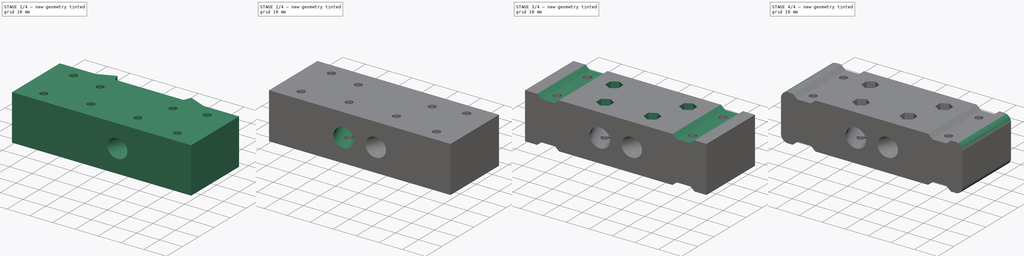
[diagram: build sequence overview — one tinted view per stage of 4, left to right]
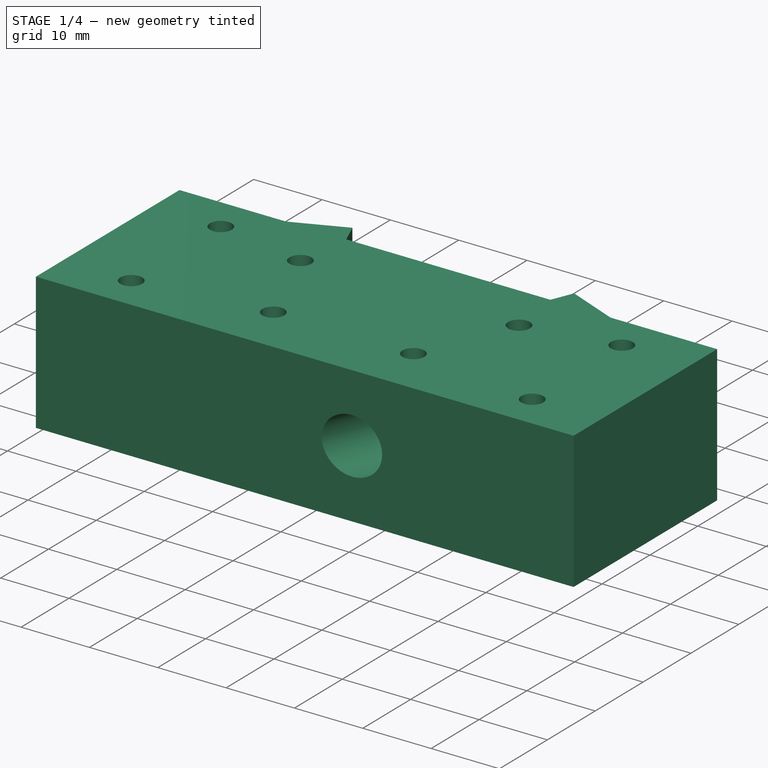
[diagram: stage 1 of 4 — iso view after this stage's code; geometry added in this stage tinted green]
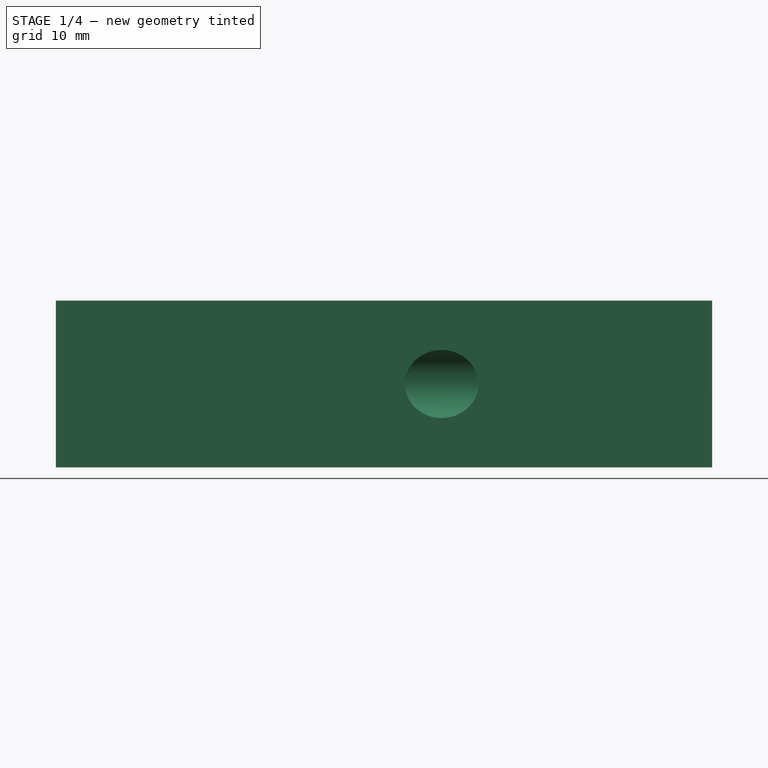
[diagram: stage 1 of 4 — front view after this stage's code; geometry added in this stage tinted green]
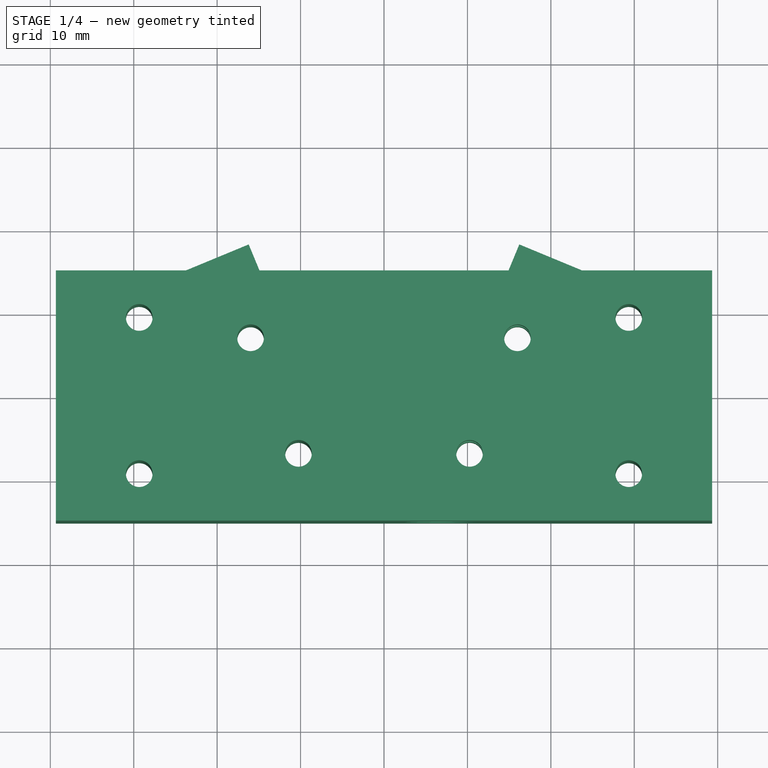
[diagram: stage 1 of 4 — top view after this stage's code; geometry added in this stage tinted green]
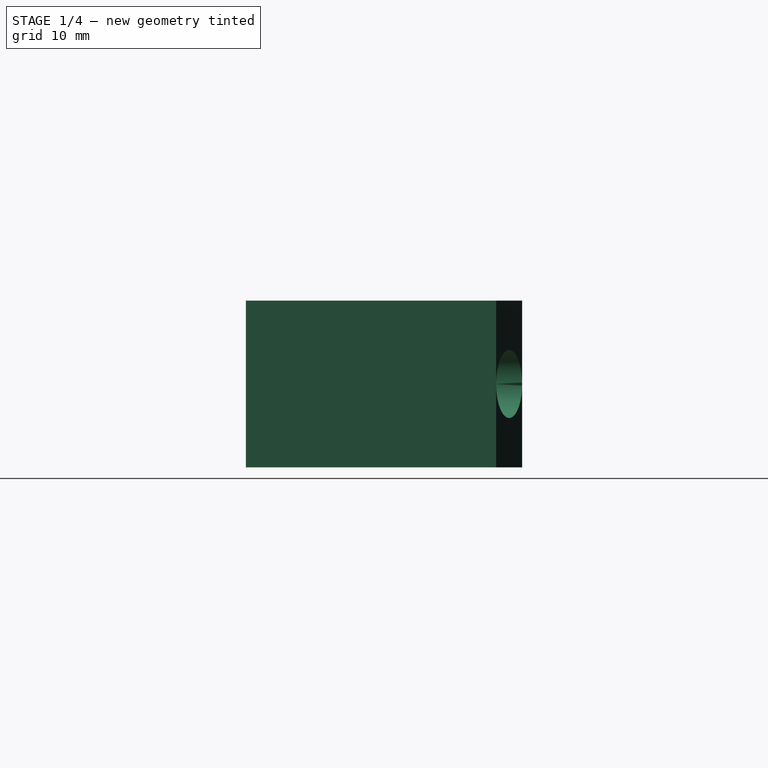
[diagram: stage 1 of 4 — right view after this stage's code; geometry added in this stage tinted green]
FCSTD DOCUMENT  (FreeCAD 0.20R29603 (Git))
Label: suporte-M8-inferior
License: All rights reserved
LicenseURL: http://en.wikipedia.org/wiki/All_rights_reserved
objects: Sketcher::SketchObject×10, PartDesign::Pocket×7, PartDesign::Pad×1, PartDesign::Fillet×1, PartDesign::Body×1
note: 29 computed .brp shape members not serialized (recipe doc carries the construction recipe); baked Part::Feature solids carry a one-line shape summary decoded from their .brp

FEATURE [Sketcher::SketchObject] Sketch
  FullyConstrained = true
  MapMode = 5
  Support = -> [XY_Plane]
  sketch-geometry (51):
    g0: LineSegment StartX=-39.3372 StartY=15 StartZ=0 EndX=39.3372 EndY=15 EndZ=0
    g1: LineSegment StartX=39.3372 StartY=15 StartZ=0 EndX=39.3372 EndY=-15 EndZ=0
    g2: LineSegment StartX=39.3372 StartY=-15 StartZ=0 EndX=-39.3372 EndY=-15 EndZ=0
    g3: LineSegment StartX=-39.3372 StartY=-15 StartZ=0 EndX=-39.3372 EndY=15 EndZ=0
    g4: LineSegment StartX=39.3372 StartY=15 StartZ=0 EndX=-39.3372 EndY=-15 EndZ=0
    g5: LineSegment StartX=-39.3372 StartY=15 StartZ=0 EndX=39.3372 EndY=-15 EndZ=0
    g6: LineSegment StartX=0 StartY=-31.684 StartZ=0 EndX=-19.3372 EndY=15 EndZ=0
    g7: LineSegment StartX=0 StartY=-31.684 StartZ=0 EndX=19.3372 EndY=15 EndZ=0
    g8: LineSegment StartX=-39.3372 StartY=15 StartZ=0 EndX=-19.3372 EndY=15 EndZ=0
    g9: LineSegment StartX=-19.3372 StartY=15 StartZ=0 EndX=-19.3372 EndY=-15 EndZ=0
    g10: LineSegment StartX=-19.3372 StartY=-15 StartZ=0 EndX=-39.3372 EndY=-15 EndZ=0
    g11: LineSegment StartX=-39.3372 StartY=-15 StartZ=0 EndX=-39.3372 EndY=15 EndZ=0
    g12: LineSegment StartX=39.3372 StartY=15 StartZ=0 EndX=19.3372 EndY=15 EndZ=0
    g13: LineSegment StartX=19.3372 StartY=15 StartZ=0 EndX=19.3372 EndY=-15 EndZ=0
    g14: LineSegment StartX=19.3372 StartY=-15 StartZ=0 EndX=39.3372 EndY=-15 EndZ=0
    g15: LineSegment StartX=39.3372 StartY=-15 StartZ=0 EndX=39.3372 EndY=15 EndZ=0
    g16: LineSegment StartX=-19.3372 StartY=15 StartZ=0 EndX=-39.3372 EndY=-15 EndZ=0
    g17: LineSegment StartX=19.3372 StartY=-15 StartZ=0 EndX=39.3372 EndY=15 EndZ=0
    g18: LineSegment StartX=-29.3372 StartY=0 StartZ=0 EndX=-29.3372 EndY=9.3625 EndZ=0
    g19: LineSegment StartX=-29.3372 StartY=0 StartZ=0 EndX=-29.3372 EndY=-9.3625 EndZ=0
    g20: LineSegment StartX=29.3372 StartY=9.3625 StartZ=0 EndX=29.3372 EndY=0 EndZ=0
    g21: LineSegment StartX=29.3372 StartY=0 StartZ=0 EndX=29.3372 EndY=-9.3625 EndZ=0
    g22: Circle CenterX=-29.3372 CenterY=9.3625 CenterZ=0 NormalX=0 NormalY=0 NormalZ=1 AngleXU=0 Radius=1.6
    g23: Circle CenterX=-29.3372 CenterY=-9.3625 CenterZ=0 NormalX=0 NormalY=0 NormalZ=1 AngleXU=0 Radius=1.6
    g24: Circle CenterX=29.3372 CenterY=9.3625 CenterZ=0 NormalX=0 NormalY=0 NormalZ=1 AngleXU=0 Radius=1.6
    g25: Circle CenterX=29.3372 CenterY=-9.3625 CenterZ=0 NormalX=0 NormalY=0 NormalZ=1 AngleXU=0 Radius=1.6
    g26: LineSegment StartX=-23.7479 StartY=15 StartZ=0 EndX=-11.3215 EndY=-15 EndZ=0
    g27: LineSegment StartX=-2.5 StartY=-15 StartZ=0 EndX=-16.2183 EndY=18.1189 EndZ=0
    g28: LineSegment StartX=2.5 StartY=-15 StartZ=0 EndX=16.2183 EndY=18.1189 EndZ=0
    g29: LineSegment StartX=23.7479 StartY=15 StartZ=0 EndX=11.3215 EndY=-15 EndZ=0
    g30: LineSegment StartX=-9.35914 StartY=1.55943 StartZ=0 EndX=-16.8888 EndY=-1.55943 EndZ=0
    g31: LineSegment StartX=-16.8888 StartY=-1.55943 StartZ=0 EndX=-13.124 EndY=0 EndZ=0
    g32: LineSegment StartX=-13.124 StartY=0 StartZ=0 EndX=-9.35914 EndY=1.55943 EndZ=0
    g33: LineSegment StartX=16.8888 StartY=-1.55943 StartZ=0 EndX=9.35914 EndY=1.55943 EndZ=0
    g34: LineSegment StartX=9.35914 StartY=1.55943 StartZ=0 EndX=13.124 EndY=0 EndZ=0
    g35: LineSegment StartX=13.124 StartY=0 StartZ=0 EndX=16.8888 EndY=-1.55943 EndZ=0
    g36: GeomPoint X=-23.7479 Y=15 Z=0
    g37: GeomPoint X=-14.9264 Y=15 Z=0
    g38: LineSegment StartX=-39.3372 StartY=15 StartZ=0 EndX=-23.7479 EndY=15 EndZ=0
    g39: LineSegment StartX=23.7479 StartY=15 StartZ=0 EndX=39.3372 EndY=15 EndZ=0
    g40: Circle CenterX=10.2538 CenterY=-6.9291 CenterZ=0 NormalX=0 NormalY=0 NormalZ=1 AngleXU=0 Radius=1.6
    g41: Circle CenterX=15.9941 CenterY=6.9291 CenterZ=0 NormalX=0 NormalY=0 NormalZ=1 AngleXU=0 Radius=1.6
    g42: Circle CenterX=-10.2538 CenterY=-6.9291 CenterZ=0 NormalX=0 NormalY=0 NormalZ=1 AngleXU=0 Radius=1.6
    g43: Circle CenterX=-15.9941 CenterY=6.9291 CenterZ=0 NormalX=0 NormalY=0 NormalZ=1 AngleXU=0 Radius=1.6
    g44: LineSegment StartX=-10.2538 StartY=-6.9291 StartZ=0 EndX=-13.124 EndY=0 EndZ=0
    g45: LineSegment StartX=-13.124 StartY=0 StartZ=0 EndX=-15.9941 EndY=6.9291 EndZ=0
    g46: LineSegment StartX=-23.7479 StartY=15 StartZ=0 EndX=-16.2183 EndY=18.1189 EndZ=0
    g47: LineSegment StartX=23.7479 StartY=15 StartZ=0 EndX=16.2183 EndY=18.1189 EndZ=0
    g48: LineSegment StartX=-16.2183 StartY=18.1189 StartZ=0 EndX=-14.9264 EndY=15 EndZ=0
    g49: LineSegment StartX=-14.9264 StartY=15 StartZ=0 EndX=14.9264 EndY=15 EndZ=0
    g50: LineSegment StartX=14.9264 StartY=15 StartZ=0 EndX=16.2183 EndY=18.1189 EndZ=0
  constraints (140):
    c: Coincident(g0,g1)
    c: Coincident(g1,g2)
    c: Coincident(g2,g3)
    c: Coincident(g3,g0)
    c: Horizontal(g0)
    c: Horizontal(g2)
    c: Vertical(g1)
    c: Vertical(g3)
    c: Coincident(g4,g0)
    c: Coincident(g4,g2)
    c: Coincident(g5,g0)
    c: Coincident(g5,g1)
    c: PointOnObject(g-1,g5)
    c: PointOnObject(g-1,g4)
    c: PointOnObject(g6,g-2)
    c: Coincident(g7,g6)
    c: Horizontal(g7,g6)
    c: Equal(g7,g6)
    c: Angle(g7,g6) = 0.785398
    c: Coincident(g8,g9)
    c: Coincident(g9,g10)
    c: Coincident(g10,g11)
    c: Coincident(g11,g8)
    c: Horizontal(g8)
    c: Horizontal(g10)
    c: Vertical(g9)
    c: Vertical(g11)
    c: Coincident(g8,g0)
    c: PointOnObject(g9,g2)
    c: Coincident(g12,g13)
    c: Coincident(g13,g14)
    c: Coincident(g14,g15)
    c: Coincident(g15,g12)
    c: Horizontal(g12)
    c: Horizontal(g14)
    c: Vertical(g13)
    c: Vertical(g15)
    c: Coincident(g12,g0)
    c: PointOnObject(g13,g2)
    c: Equal(g14,g10)
    c: DistanceX(g2,g9) = 20
    c: DistanceY(g3,g3) = 30
    c: Coincident(g16,g8)
    c: Coincident(g16,g2)
    c: Coincident(g17,g13)
    c: Coincident(g17,g0)
    c: Coincident(g19,g18)
    c: Coincident(g21,g20)
    c: PointOnObject(g18,g16)
    c: PointOnObject(g18,g-1)
    c: PointOnObject(g20,g17)
    c: PointOnObject(g20,g-1)
    c: Vertical(g19)
    c: Vertical(g18)
    c: Vertical(g20)
    c: Vertical(g21)
    c: Equal(g19,g18)
    c: Equal(g18,g20)
    c: Equal(g20,g21)
    c: Coincident(g22,g18)
    c: Coincident(g23,g19)
    c: Coincident(g24,g20)
    c: Coincident(g25,g21)
    c: Equal(g22,g23)
    c: Equal(g23,g25)
    c: Equal(g25,g24)
    c: Diameter(g24) = 3.2
    c: DistanceY(g25,g24) = 18.725
    c: PointOnObject(g26,g2)
    c: PointOnObject(g27,g2)
    c: PointOnObject(g28,g2)
    c: PointOnObject(g29,g2)
    c: Parallel(g27,g6)
    c: Parallel(g6,g26)
    c: Parallel(g29,g7)
    c: Parallel(g7,g28)
    c: PointOnObject(g30,g27)
    c: PointOnObject(g30,g26)
    c: Angle(g30,g6) = 1.5708
    c: Coincident(g31,g30)
    c: PointOnObject(g31,g6)
    c: Coincident(g32,g31)
    c: Coincident(g32,g30)
    c: Equal(g32,g31)
    c: PointOnObject(g31,g30)
    c: Distance(g30) = 8.15
    c: Coincident(g6,g8)
    c: PointOnObject(g33,g29)
    c: PointOnObject(g33,g28)
    c: Angle(g7,g33) = 1.5708
    c: Coincident(g34,g33)
    c: PointOnObject(g34,g7)
    c: Coincident(g35,g34)
    c: Coincident(g35,g33)
    c: Equal(g35,g34)
    c: PointOnObject(g34,g33)
    c: Equal(g33,g30)
    c: Horizontal(g34,g31)
    c: DistanceX(g27,g28) = 5
    c: PointOnObject(g31,g-1)
    c: PointOnObject(g38,g0)
    c: PointOnObject(g39,g0)
    c: PointOnObject(g36,g0)
    c: PointOnObject(g36,g26)
    c: PointOnObject(g37,g27)
    c: PointOnObject(g37,g0)
    c: Coincident(g38,g3)
    c: Coincident(g39,g1)
    c: PointOnObject(g40,g7)
    c: PointOnObject(g41,g7)
    c: PointOnObject(g42,g6)
    c: PointOnObject(g43,g6)
    c: Equal(g43,g41)
    c: Equal(g41,g40)
    c: Equal(g40,g42)
    c: Coincident(g44,g42)
    c: Coincident(g45,g44)
    c: Coincident(g45,g43)
    c: Equal(g45,g44)
    c: PointOnObject(g44,g-1)
    c: PointOnObject(g44,g30)
    c: Equal(g42,g22)
    c: Horizontal(g41,g43)
    c: Horizontal(g42,g40)
    c: Distance(g40,g41) = 15
    c: Coincident(g27,g46)
    c: Coincident(g46,g26)
    c: Parallel(g46,g30)
    c: Coincident(g38,g46)
    c: Coincident(g47,g29)
    c: Coincident(g47,g28)
    c: Coincident(g47,g39)
    c: Parallel(g47,g33)
    c: Coincident(g46,g48)
    c: Coincident(g48,g37)
    c: Coincident(g48,g49)
    c: Horizontal(g49)
    c: Coincident(g49,g50)
    c: Coincident(g50,g47)
    c: PointOnObject(g49,g28)
FEATURE [PartDesign::Pad] Pad
  Direction = (0,0,1)
  Length = 20
  Length2 = 10
  Profile = -> Sketch
  ReferenceAxis = -> Sketch [N_Axis]
  Type = 0
FEATURE [Sketcher::SketchObject] Sketch001
  ExternalGeometry = -> [Pad]
  FullyConstrained = true
  MapMode = 5
  Placement = pos=(8.7811,21.1995,0) rot=(0.139281,0.700215,0.700215;2.86481rad)
  Support = -> [Pad]
  sketch-geometry (3):
    g0: LineSegment StartX=-8.04995 StartY=20 StartZ=0 EndX=-16.2 EndY=0 EndZ=0
    g1: LineSegment StartX=-16.2 StartY=20 StartZ=0 EndX=-8.04995 EndY=0 EndZ=0
    g2: Circle CenterX=-12.125 CenterY=10 CenterZ=0 NormalX=0 NormalY=0 NormalZ=1 AngleXU=0 Radius=4.075
  constraints (7):
    c: Coincident(g0,g-4)
    c: Coincident(g0,g-3)
    c: Coincident(g1,g-3)
    c: Coincident(g1,g-4)
    c: PointOnObject(g2,g1)
    c: PointOnObject(g2,g0)
    c: Diameter(g2) = 8.15
FEATURE [PartDesign::Pocket] Pocket
  BaseFeature = -> Pad
  Direction = (-0.382683,-0.92388,2e-16)
  Length = 5
  Length2 = 5
  Profile = -> Sketch001
  ReferenceAxis = -> Sketch001 [N_Axis]
  Type = 1
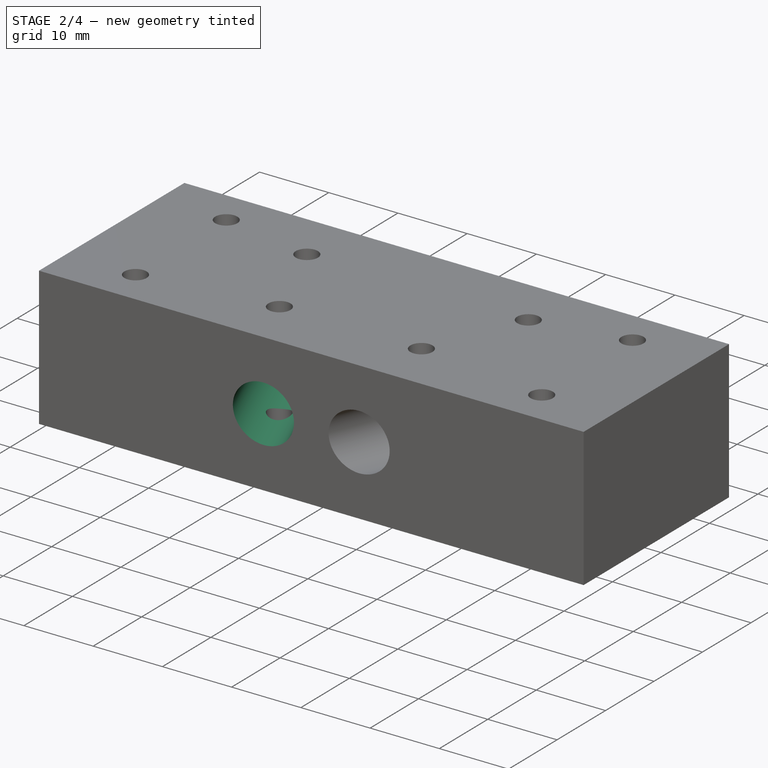
[diagram: stage 2 of 4 — iso view after this stage's code; geometry added in this stage tinted green]
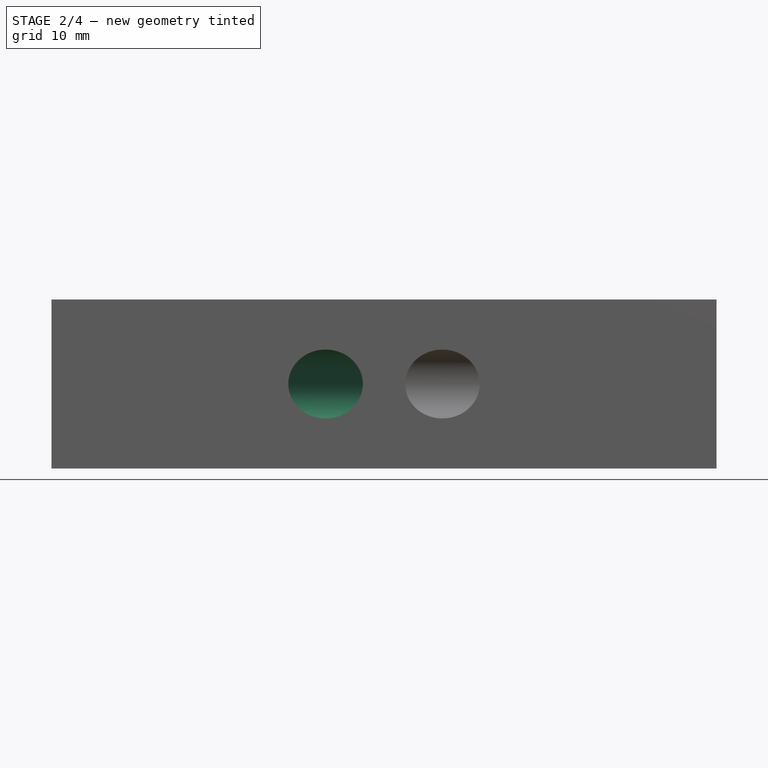
[diagram: stage 2 of 4 — front view after this stage's code; geometry added in this stage tinted green]
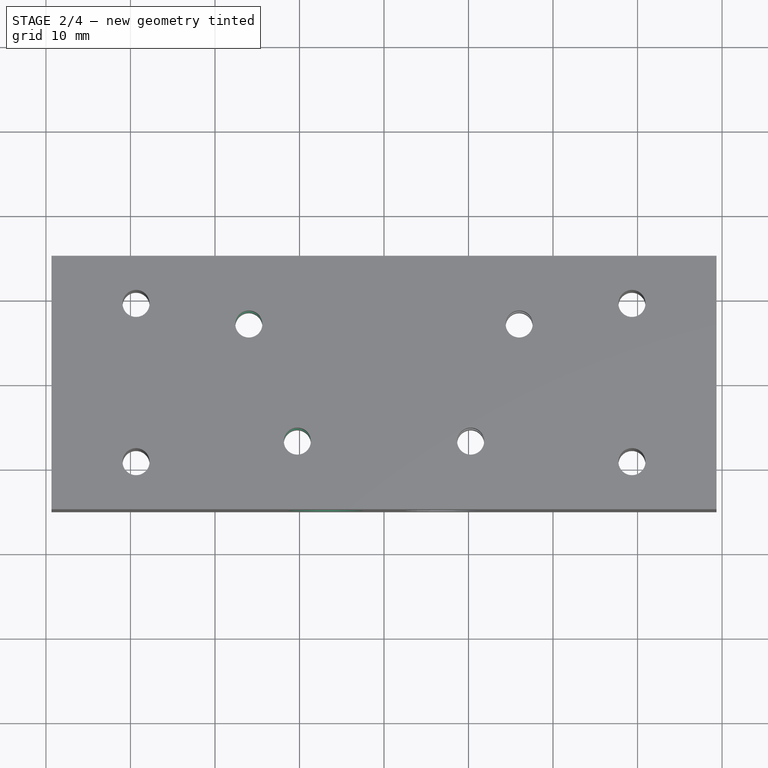
[diagram: stage 2 of 4 — top view after this stage's code; geometry added in this stage tinted green]
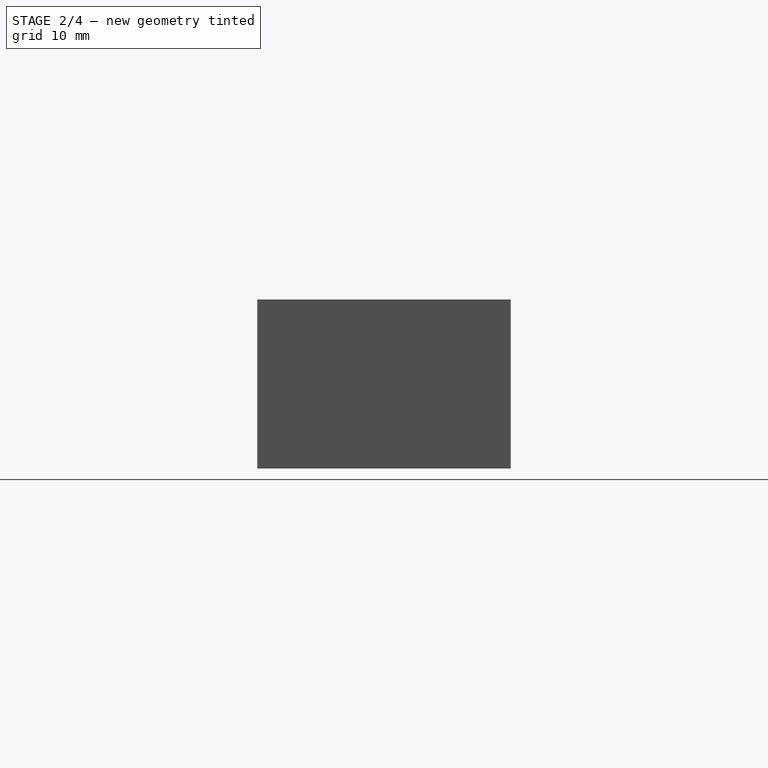
[diagram: stage 2 of 4 — right view after this stage's code; geometry added in this stage tinted green]
FEATURE [Sketcher::SketchObject] Sketch002
  ExternalGeometry = -> [Pocket]
  FullyConstrained = true
  MapMode = 5
  Placement = pos=(-8.7811,21.1995,0) rot=(-0.139281,0.700215,0.700215;3.41838rad)
  Support = -> [Pocket]
  sketch-geometry (3):
    g0: LineSegment StartX=16.2 StartY=20 StartZ=0 EndX=8.04995 EndY=0 EndZ=0
    g1: LineSegment StartX=16.2 StartY=0 StartZ=0 EndX=8.04995 EndY=20 EndZ=0
    g2: Circle CenterX=12.125 CenterY=10 CenterZ=0 NormalX=0 NormalY=0 NormalZ=1 AngleXU=0 Radius=4.075
  constraints (7):
    c: Coincident(g0,g-4)
    c: Coincident(g1,g-4)
    c: Coincident(g1,g-3)
    c: Coincident(g0,g-3)
    c: PointOnObject(g2,g1)
    c: PointOnObject(g2,g0)
    c: Diameter(g2) = 8.15
FEATURE [PartDesign::Pocket] Pocket001
  BaseFeature = -> Pocket
  Direction = (0.382683,-0.92388,0)
  Length = 5
  Length2 = 5
  Profile = -> Sketch002
  ReferenceAxis = -> Sketch002 [N_Axis]
  Type = 1
FEATURE [Sketcher::SketchObject] Sketch003
  ExternalGeometry = -> [Pocket001]
  FullyConstrained = true
  MapMode = 5
  Placement = pos=(0,0,0) rot=(1,0,0;3.14159rad)
  Support = -> [Pocket001]
  sketch-geometry (6):
    g0: LineSegment StartX=-14.9264 StartY=-15 StartZ=0 EndX=-16.2183 EndY=-18.1189 EndZ=0
    g1: LineSegment StartX=-16.2183 StartY=-18.1189 StartZ=0 EndX=-23.7479 EndY=-15 EndZ=0
    g2: LineSegment StartX=-23.7479 StartY=-15 StartZ=0 EndX=-14.9264 EndY=-15 EndZ=0
    g3: LineSegment StartX=14.9264 StartY=-15 StartZ=0 EndX=16.2183 EndY=-18.1189 EndZ=0
    g4: LineSegment StartX=16.2183 StartY=-18.1189 StartZ=0 EndX=23.7479 EndY=-15 EndZ=0
    g5: LineSegment StartX=23.7479 StartY=-15 StartZ=0 EndX=14.9264 EndY=-15 EndZ=0
  constraints (12):
    c: Coincident(g-3,g0)
    c: Coincident(g0,g-4)
    c: Coincident(g0,g1)
    c: Coincident(g1,g-4)
    c: Coincident(g1,g2)
    c: Coincident(g2,g0)
    c: Coincident(g3,g-6)
    c: Coincident(g3,g4)
    c: Coincident(g4,g-6)
    c: Coincident(g4,g5)
    c: Coincident(g5,g3)
    c: Coincident(g3,g-5)
FEATURE [PartDesign::Pocket] Pocket002
  BaseFeature = -> Pocket001
  Direction = (0,0,1)
  Length = 5
  Length2 = 5
  Profile = -> Sketch003
  ReferenceAxis = -> Sketch003 [N_Axis]
  Type = 1
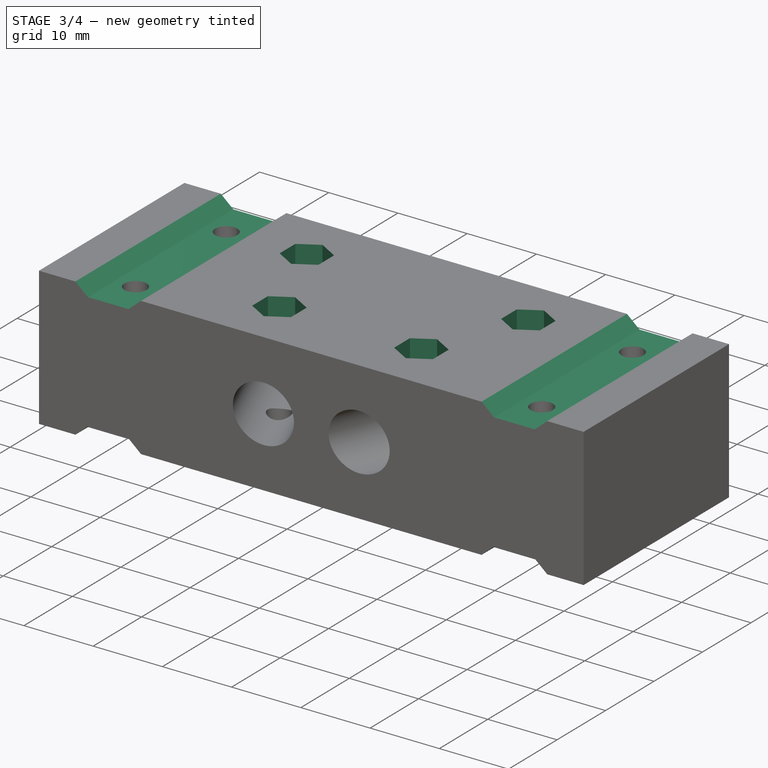
[diagram: stage 3 of 4 — iso view after this stage's code; geometry added in this stage tinted green]
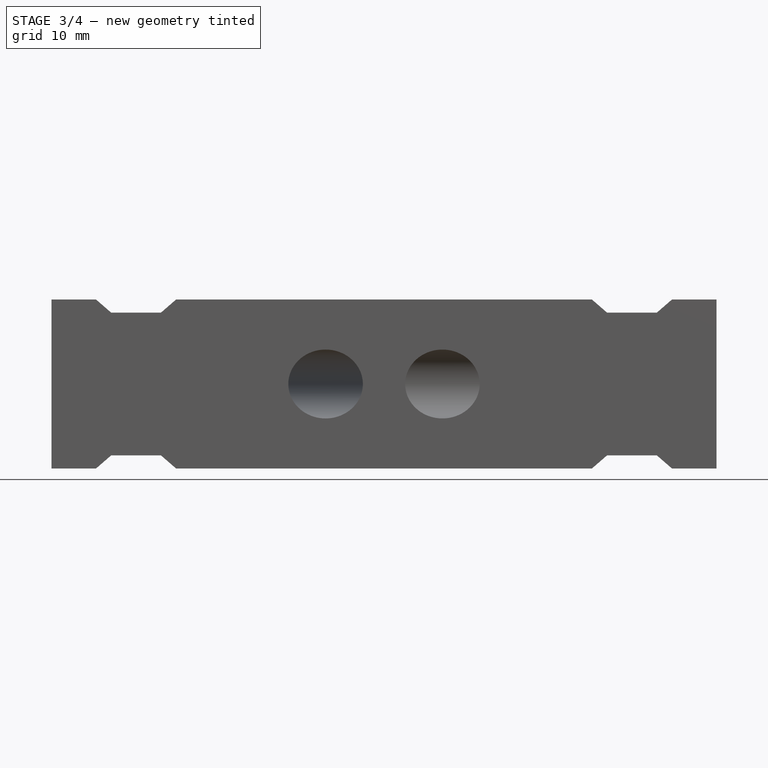
[diagram: stage 3 of 4 — front view after this stage's code; geometry added in this stage tinted green]
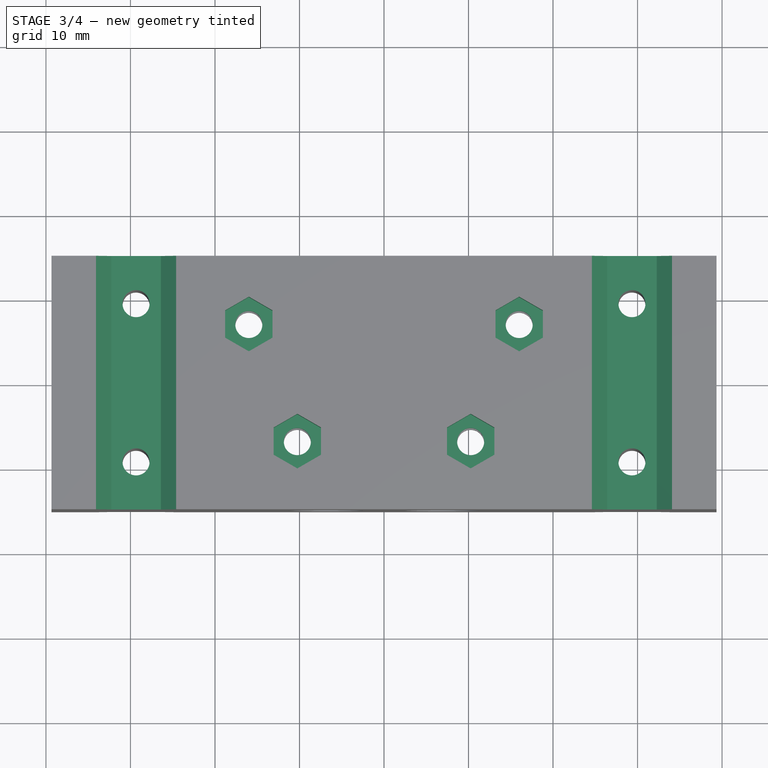
[diagram: stage 3 of 4 — top view after this stage's code; geometry added in this stage tinted green]
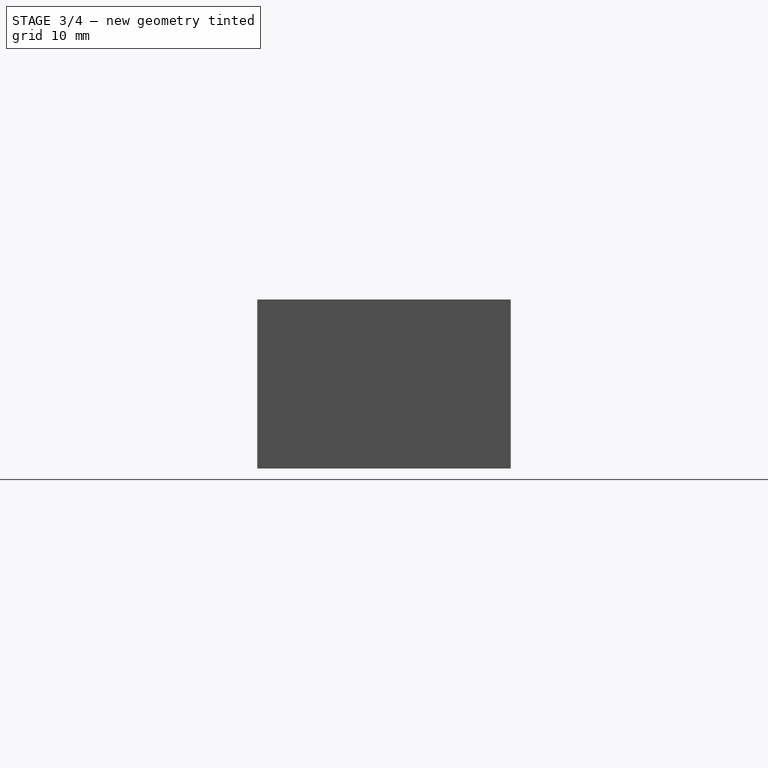
[diagram: stage 3 of 4 — right view after this stage's code; geometry added in this stage tinted green]
FEATURE [Sketcher::SketchObject] Sketch004
  ExternalGeometry = -> [Pocket002]
  FullyConstrained = true
  MapMode = 5
  Placement = pos=(0,0,0) rot=(1,0,0;3.14159rad)
  Support = -> [Pocket002]
  sketch-geometry (28):
    g0: LineSegment StartX=-7.45383 StartY=8.54568 StartZ=0 EndX=-10.2538 EndY=10.1623 EndZ=0
    g1: LineSegment StartX=-10.2538 StartY=10.1623 StartZ=0 EndX=-13.0538 EndY=8.54568 EndZ=0
    g2: LineSegment StartX=-13.0538 StartY=8.54568 StartZ=0 EndX=-13.0538 EndY=5.31252 EndZ=0
    g3: LineSegment StartX=-13.0538 StartY=5.31252 StartZ=0 EndX=-10.2538 EndY=3.69593 EndZ=0
    g4: LineSegment StartX=-10.2538 StartY=3.69593 StartZ=0 EndX=-7.45383 EndY=5.31252 EndZ=0
    g5: LineSegment StartX=-7.45383 StartY=5.31252 StartZ=0 EndX=-7.45383 EndY=8.54568 EndZ=0
    g6: Circle CenterX=-10.2538 CenterY=6.9291 CenterZ=0 NormalX=0 NormalY=0 NormalZ=1 AngleXU=0 Radius=3.23316
    g7: LineSegment StartX=13.0538 StartY=8.54568 StartZ=0 EndX=10.2538 EndY=10.1623 EndZ=0
    g8: LineSegment StartX=10.2538 StartY=10.1623 StartZ=0 EndX=7.45383 EndY=8.54568 EndZ=0
    g9: LineSegment StartX=7.45383 StartY=8.54568 StartZ=0 EndX=7.45383 EndY=5.31252 EndZ=0
    g10: LineSegment StartX=7.45383 StartY=5.31252 StartZ=0 EndX=10.2538 EndY=3.69593 EndZ=0
    g11: LineSegment StartX=10.2538 StartY=3.69593 StartZ=0 EndX=13.0538 EndY=5.31252 EndZ=0
    g12: LineSegment StartX=13.0538 StartY=5.31252 StartZ=0 EndX=13.0538 EndY=8.54568 EndZ=0
    g13: Circle CenterX=10.2538 CenterY=6.9291 CenterZ=0 NormalX=0 NormalY=0 NormalZ=1 AngleXU=0 Radius=3.23316
    g14: LineSegment StartX=15.9941 StartY=-3.69593 StartZ=0 EndX=13.1941 EndY=-5.31252 EndZ=0
    g15: LineSegment StartX=13.1941 StartY=-5.31252 StartZ=0 EndX=13.1941 EndY=-8.54568 EndZ=0
    g16: LineSegment StartX=13.1941 StartY=-8.54568 StartZ=0 EndX=15.9941 EndY=-10.1623 EndZ=0
    g17: LineSegment StartX=15.9941 StartY=-10.1623 StartZ=0 EndX=18.7941 EndY=-8.54568 EndZ=0
    g18: LineSegment StartX=18.7941 StartY=-8.54568 StartZ=0 EndX=18.7941 EndY=-5.31252 EndZ=0
    g19: LineSegment StartX=18.7941 StartY=-5.31252 StartZ=0 EndX=15.9941 EndY=-3.69593 EndZ=0
    g20: Circle CenterX=15.9941 CenterY=-6.9291 CenterZ=0 NormalX=0 NormalY=0 NormalZ=1 AngleXU=0 Radius=3.23316
    g21: LineSegment StartX=-13.1941 StartY=-5.31252 StartZ=0 EndX=-15.9941 EndY=-3.69593 EndZ=0
    g22: LineSegment StartX=-15.9941 StartY=-3.69593 StartZ=0 EndX=-18.7941 EndY=-5.31252 EndZ=0
    g23: LineSegment StartX=-18.7941 StartY=-5.31252 StartZ=0 EndX=-18.7941 EndY=-8.54568 EndZ=0
    g24: LineSegment StartX=-18.7941 StartY=-8.54568 StartZ=0 EndX=-15.9941 EndY=-10.1623 EndZ=0
    g25: LineSegment StartX=-15.9941 StartY=-10.1623 StartZ=0 EndX=-13.1941 EndY=-8.54568 EndZ=0
    g26: LineSegment StartX=-13.1941 StartY=-8.54568 StartZ=0 EndX=-13.1941 EndY=-5.31252 EndZ=0
    g27: Circle CenterX=-15.9941 CenterY=-6.9291 CenterZ=0 NormalX=0 NormalY=0 NormalZ=1 AngleXU=0 Radius=3.23316
  constraints (64):
    c: Coincident(g0,g1)
    c: Coincident(g1,g2)
    c: Coincident(g2,g3)
    c: Coincident(g3,g4)
    c: Coincident(g4,g5)
    c: Coincident(g5,g0)
    c: Equal(g0, g1-g5) x5
    c: PointOnObject(g0,g6)
    c: PointOnObject(g1,g6)
    c: PointOnObject(g2,g6)
    c: PointOnObject(g3,g6)
    c: PointOnObject(g4,g6)
    c: PointOnObject(g5,g6)
    c: Coincident(g6,g-3)
    c: Coincident(g7,g8)
    c: Coincident(g8,g9)
    c: Coincident(g9,g10)
    c: Coincident(g10,g11)
    c: Coincident(g11,g12)
    c: Coincident(g12,g7)
    c: Equal(g7, g8-g12) x5
    c: PointOnObject(g7,g13)
    c: PointOnObject(g8,g13)
    c: PointOnObject(g9,g13)
    c: PointOnObject(g10,g13)
    c: PointOnObject(g11,g13)
    c: PointOnObject(g12,g13)
    c: Coincident(g13,g-4)
    c: Coincident(g14,g15)
    c: Coincident(g15,g16)
    c: Coincident(g16,g17)
    c: Coincident(g17,g18)
    c: Coincident(g18,g19)
    c: Coincident(g19,g14)
    c: Equal(g14, g15-g19) x5
    c: PointOnObject(g14,g20)
    c: PointOnObject(g15,g20)
    c: PointOnObject(g16,g20)
    c: PointOnObject(g17,g20)
    c: PointOnObject(g18,g20)
    c: PointOnObject(g19,g20)
    c: Coincident(g20,g-5)
    c: Coincident(g21,g22)
    c: Coincident(g22,g23)
    c: Coincident(g23,g24)
    c: Coincident(g24,g25)
    c: Coincident(g25,g26)
    c: Coincident(g26,g21)
    c: Equal(g21, g22-g26) x5
    c: PointOnObject(g21,g27)
    c: PointOnObject(g22,g27)
    c: PointOnObject(g23,g27)
    c: PointOnObject(g24,g27)
    c: PointOnObject(g25,g27)
    c: PointOnObject(g26,g27)
    c: Coincident(g27,g-6)
    c: Vertical(g2)
    c: Vertical(g23)
    c: Vertical(g9)
    c: Vertical(g15)
    c: Equal(g6,g13)
    c: Equal(g13,g27)
    c: Equal(g27,g20)
    c: DistanceX(g1,g0) = 5.6
FEATURE [PartDesign::Pocket] Pocket003
  BaseFeature = -> Pocket002
  Direction = (0,0,1)
  Length = 3.5
  Length2 = 5
  Profile = -> Sketch004
  ReferenceAxis = -> Sketch004 [N_Axis]
  Type = 0
FEATURE [Sketcher::SketchObject] Sketch005
  ExternalGeometry = -> [Pocket003]
  FullyConstrained = true
  MapMode = 5
  Placement = pos=(0,0,20) rot=(0,0,1;0rad)
  Support = -> [Pocket003]
  sketch-geometry (28):
    g0: LineSegment StartX=-13.1941 StartY=8.54568 StartZ=0 EndX=-15.9941 EndY=10.1623 EndZ=0
    g1: LineSegment StartX=-15.9941 StartY=10.1623 StartZ=0 EndX=-18.7941 EndY=8.54568 EndZ=0
    g2: LineSegment StartX=-18.7941 StartY=8.54568 StartZ=0 EndX=-18.7941 EndY=5.31252 EndZ=0
    g3: LineSegment StartX=-18.7941 StartY=5.31252 StartZ=0 EndX=-15.9941 EndY=3.69593 EndZ=0
    g4: LineSegment StartX=-15.9941 StartY=3.69593 StartZ=0 EndX=-13.1941 EndY=5.31252 EndZ=0
    g5: LineSegment StartX=-13.1941 StartY=5.31252 StartZ=0 EndX=-13.1941 EndY=8.54568 EndZ=0
    g6: Circle CenterX=-15.9941 CenterY=6.9291 CenterZ=0 NormalX=0 NormalY=0 NormalZ=1 AngleXU=0 Radius=3.23316
    g7: LineSegment StartX=10.2538 StartY=-3.69593 StartZ=0 EndX=7.45383 EndY=-5.31252 EndZ=0
    g8: LineSegment StartX=7.45383 StartY=-5.31252 StartZ=0 EndX=7.45383 EndY=-8.54568 EndZ=0
    g9: LineSegment StartX=7.45383 StartY=-8.54568 StartZ=0 EndX=10.2538 EndY=-10.1623 EndZ=0
    g10: LineSegment StartX=10.2538 StartY=-10.1623 StartZ=0 EndX=13.0538 EndY=-8.54568 EndZ=0
    g11: LineSegment StartX=13.0538 StartY=-8.54568 StartZ=0 EndX=13.0538 EndY=-5.31252 EndZ=0
    g12: LineSegment StartX=13.0538 StartY=-5.31252 StartZ=0 EndX=10.2538 EndY=-3.69593 EndZ=0
    g13: Circle CenterX=10.2538 CenterY=-6.9291 CenterZ=0 NormalX=0 NormalY=0 NormalZ=1 AngleXU=0 Radius=3.23316
    g14: LineSegment StartX=13.1941 StartY=8.54568 StartZ=0 EndX=13.1941 EndY=5.31252 EndZ=0
    g15: LineSegment StartX=13.1941 StartY=5.31252 StartZ=0 EndX=15.9941 EndY=3.69593 EndZ=0
    g16: LineSegment StartX=15.9941 StartY=3.69593 StartZ=0 EndX=18.7941 EndY=5.31252 EndZ=0
    g17: LineSegment StartX=18.7941 StartY=5.31252 StartZ=0 EndX=18.7941 EndY=8.54568 EndZ=0
    g18: LineSegment StartX=18.7941 StartY=8.54568 StartZ=0 EndX=15.9941 EndY=10.1623 EndZ=0
    g19: LineSegment StartX=15.9941 StartY=10.1623 StartZ=0 EndX=13.1941 EndY=8.54568 EndZ=0
    g20: Circle CenterX=15.9941 CenterY=6.9291 CenterZ=0 NormalX=0 NormalY=0 NormalZ=1 AngleXU=0 Radius=3.23316
    g21: LineSegment StartX=-10.2538 StartY=-3.69593 StartZ=0 EndX=-13.0538 EndY=-5.31252 EndZ=0
    g22: LineSegment StartX=-13.0538 StartY=-5.31252 StartZ=0 EndX=-13.0538 EndY=-8.54568 EndZ=0
    g23: LineSegment StartX=-13.0538 StartY=-8.54568 StartZ=0 EndX=-10.2538 EndY=-10.1623 EndZ=0
    g24: LineSegment StartX=-10.2538 StartY=-10.1623 StartZ=0 EndX=-7.45383 EndY=-8.54568 EndZ=0
    g25: LineSegment StartX=-7.45383 StartY=-8.54568 StartZ=0 EndX=-7.45383 EndY=-5.31252 EndZ=0
    g26: LineSegment StartX=-7.45383 StartY=-5.31252 StartZ=0 EndX=-10.2538 EndY=-3.69593 EndZ=0
    g27: Circle CenterX=-10.2538 CenterY=-6.9291 CenterZ=0 NormalX=0 NormalY=0 NormalZ=1 AngleXU=0 Radius=3.23316
  constraints (63):
    c: Coincident(g0,g1)
    c: Coincident(g1,g2)
    c: Coincident(g2,g3)
    c: Coincident(g3,g4)
    c: Coincident(g4,g5)
    c: Coincident(g5,g0)
    c: Equal(g0, g1-g5) x5
    c: PointOnObject(g0,g6)
    c: PointOnObject(g1,g6)
    c: PointOnObject(g2,g6)
    c: PointOnObject(g3,g6)
    c: PointOnObject(g4,g6)
    c: PointOnObject(g5,g6)
    c: Coincident(g6,g-3)
    c: Coincident(g7,g8)
    c: Coincident(g8,g9)
    c: Coincident(g9,g10)
    c: Coincident(g10,g11)
    c: Coincident(g11,g12)
    c: Coincident(g12,g7)
    c: Equal(g7, g8-g12) x5
    c: PointOnObject(g7,g13)
    c: PointOnObject(g8,g13)
    c: PointOnObject(g9,g13)
    c: PointOnObject(g10,g13)
    c: PointOnObject(g11,g13)
    c: PointOnObject(g12,g13)
    c: Coincident(g13,g-6)
    c: Coincident(g14,g15)
    c: Coincident(g15,g16)
    c: Coincident(g16,g17)
    c: Coincident(g17,g18)
    c: Coincident(g18,g19)
    c: Coincident(g19,g14)
    c: Equal(g14, g15-g19) x5
    c: PointOnObject(g14,g20)
    c: PointOnObject(g15,g20)
    c: PointOnObject(g16,g20)
    c: PointOnObject(g17,g20)
    c: PointOnObject(g18,g20)
    c: PointOnObject(g19,g20)
    c: Coincident(g20,g-7)
    c: Coincident(g21,g22)
    c: Coincident(g22,g23)
    c: Coincident(g23,g24)
    c: Coincident(g24,g25)
    c: Coincident(g25,g26)
    c: Coincident(g26,g21)
    c: Equal(g21, g22-g26) x5
    c: PointOnObject(g21,g27)
    c: PointOnObject(g22,g27)
    c: PointOnObject(g23,g27)
    c: PointOnObject(g24,g27)
    c: PointOnObject(g25,g27)
    c: PointOnObject(g26,g27)
    c: Coincident(g27,g-4)
    c: Coincident(g1,g-5)
    c: Equal(g6,g27)
    c: Equal(g27,g13)
    c: Equal(g13,g20)
    c: Vertical(g22)
    c: Vertical(g8)
    c: Vertical(g14)
FEATURE [PartDesign::Pocket] Pocket004
  BaseFeature = -> Pocket003
  Direction = (0,0,-1)
  Length = 3.5
  Length2 = 5
  Profile = -> Sketch005
  ReferenceAxis = -> Sketch005 [N_Axis]
  Type = 0
FEATURE [Sketcher::SketchObject] Sketch006
  ExternalGeometry = -> [Pocket004]
  FullyConstrained = true
  MapMode = 5
  Placement = pos=(0,15,0) rot=(0,0.707107,0.707107;3.14159rad)
  Support = -> [Pocket004]
  sketch-geometry (28):
    g0: LineSegment StartX=-39.3372 StartY=20 StartZ=0 EndX=-19.3372 EndY=20 EndZ=0
    g1: LineSegment StartX=-19.3372 StartY=20 StartZ=0 EndX=-19.3372 EndY=0 EndZ=0
    g2: LineSegment StartX=-39.3372 StartY=0 StartZ=0 EndX=-39.3372 EndY=20 EndZ=0
    g3: LineSegment StartX=19.3372 StartY=20 StartZ=0 EndX=39.3372 EndY=20 EndZ=0
    g4: LineSegment StartX=39.3372 StartY=20 StartZ=0 EndX=39.3372 EndY=0 EndZ=0
    g5: LineSegment StartX=19.3372 StartY=0 StartZ=0 EndX=19.3372 EndY=20 EndZ=0
    g6: LineSegment StartX=-39.3372 StartY=0 StartZ=0 EndX=-29.3372 EndY=1.37548e-07 EndZ=0
    g7: LineSegment StartX=-19.3372 StartY=0 StartZ=0 EndX=-29.3372 EndY=1.37548e-07 EndZ=0
    g8: LineSegment StartX=19.3372 StartY=0 StartZ=0 EndX=29.3372 EndY=0 EndZ=0
    g9: LineSegment StartX=39.3372 StartY=0 StartZ=0 EndX=29.3372 EndY=0 EndZ=0
    g10: LineSegment StartX=-29.3372 StartY=1.37548e-07 StartZ=0 EndX=-34.0772 EndY=1.37548e-07 EndZ=0
    g11: LineSegment StartX=-34.0772 StartY=1.37548e-07 StartZ=0 EndX=-32.2772 EndY=1.56 EndZ=0
    g12: LineSegment StartX=-32.2772 StartY=1.56 StartZ=0 EndX=-26.3972 EndY=1.56 EndZ=0
    g13: LineSegment StartX=-26.3972 StartY=1.56 StartZ=0 EndX=-24.5972 EndY=1.37548e-07 EndZ=0
    g14: LineSegment StartX=-24.5972 StartY=1.37548e-07 StartZ=0 EndX=-29.3372 EndY=1.37548e-07 EndZ=0
    g15: LineSegment StartX=29.3372 StartY=0 StartZ=0 EndX=34.0772 EndY=0 EndZ=0
    g16: LineSegment StartX=34.0772 StartY=0 StartZ=0 EndX=32.2772 EndY=1.56 EndZ=0
    g17: LineSegment StartX=32.2772 StartY=1.56 StartZ=0 EndX=26.3972 EndY=1.56 EndZ=0
    g18: LineSegment StartX=26.3972 StartY=1.56 StartZ=0 EndX=24.5972 EndY=0 EndZ=0
    g19: LineSegment StartX=24.5972 StartY=0 StartZ=0 EndX=29.3372 EndY=0 EndZ=0
    g20: LineSegment StartX=-24.5972 StartY=20 StartZ=0 EndX=-34.0772 EndY=20 EndZ=0
    g21: LineSegment StartX=-34.0772 StartY=20 StartZ=0 EndX=-32.2772 EndY=18.44 EndZ=0
    g22: LineSegment StartX=-32.2772 StartY=18.44 StartZ=0 EndX=-26.3972 EndY=18.44 EndZ=0
    g23: LineSegment StartX=-26.3972 StartY=18.44 StartZ=0 EndX=-24.5972 EndY=20 EndZ=0
    g24: LineSegment StartX=24.5972 StartY=20 StartZ=0 EndX=34.0772 EndY=20 EndZ=0
    g25: LineSegment StartX=34.0772 StartY=20 StartZ=0 EndX=32.2772 EndY=18.44 EndZ=0
    g26: LineSegment StartX=32.2772 StartY=18.44 StartZ=0 EndX=26.3972 EndY=18.44 EndZ=0
    g27: LineSegment StartX=26.3972 StartY=18.44 StartZ=0 EndX=24.5972 EndY=20 EndZ=0
  constraints (78):
    c: Coincident(g0,g1)
    c: Coincident(g2,g0)
    c: Horizontal(g0)
    c: Vertical(g1)
    c: Coincident(g3,g4)
    c: Coincident(g5,g3)
    c: Horizontal(g3)
    c: Vertical(g5)
    c: Coincident(g3,g-4)
    c: Coincident(g4,g-4)
    c: Coincident(g0,g-3)
    c: Equal(g3,g0)
    c: DistanceX(g3,g3) = 20
    c: PointOnObject(g7,g-1)
    c: Coincident(g7,g6)
    c: Coincident(g8,g5)
    c: Coincident(g9,g4)
    c: Coincident(g9,g8)
    c: Equal(g8,g9)
    c: Equal(g9,g7)
    c: Equal(g7,g6)
    c: Coincident(g6,g2)
    c: Coincident(g2,g-3)
    c: Coincident(g7,g1)
    c: PointOnObject(g5,g-1)
    c: PointOnObject(g8,g-1)
    c: Coincident(g6,g10)
    c: Coincident(g10,g11)
    c: Coincident(g11,g12)
    c: Coincident(g12,g13)
    c: Coincident(g13,g14)
    c: Coincident(g14,g10)
    c: Coincident(g8,g15)
    c: Coincident(g15,g16)
    c: Coincident(g16,g17)
    c: Horizontal(g17)
    c: Coincident(g17,g18)
    c: Coincident(g18,g19)
    c: Coincident(g19,g15)
    c: Equal(g19,g15)
    c: Equal(g15,g10)
    c: Equal(g10,g14)
    c: Horizontal(g14)
    c: Horizontal(g10)
    c: Horizontal(g19)
    c: Horizontal(g15)
    c: Horizontal(g12)
    c: Equal(g11,g13)
    c: Equal(g18,g16)
    c: Horizontal(g12,g17)
    c: DistanceX(g10,g13) = 9.48
    c: DistanceX(g12,g12) = 5.88
    c: DistanceY(g10,g11) = 1.56
    c: Equal(g17,g12)
    c: Horizontal(g20)
    c: Coincident(g20,g21)
    c: Coincident(g21,g22)
    c: Coincident(g22,g23)
    c: Coincident(g23,g20)
    c: Horizontal(g24)
    c: Coincident(g24,g25)
    c: Coincident(g25,g26)
    c: Horizontal(g26)
    c: Coincident(g26,g27)
    c: Coincident(g27,g24)
    c: Equal(g27,g25)
    c: Equal(g25,g21)
    c: Equal(g21,g23)
    c: Equal(g23,g13)
    c: Equal(g22,g26)
    c: Equal(g26,g12)
    c: Vertical(g20,g10)
    c: Vertical(g20,g13)
    c: PointOnObject(g20,g0)
    c: Horizontal(g22)
    c: PointOnObject(g24,g3)
    c: Vertical(g24,g18)
    c: Vertical(g24,g15)
FEATURE [PartDesign::Pocket] Pocket005
  BaseFeature = -> Pocket004
  Direction = (0,-1,2e-16)
  Length = 5
  Length2 = 5
  Profile = -> Sketch006
  ReferenceAxis = -> Sketch006 [N_Axis]
  Type = 1
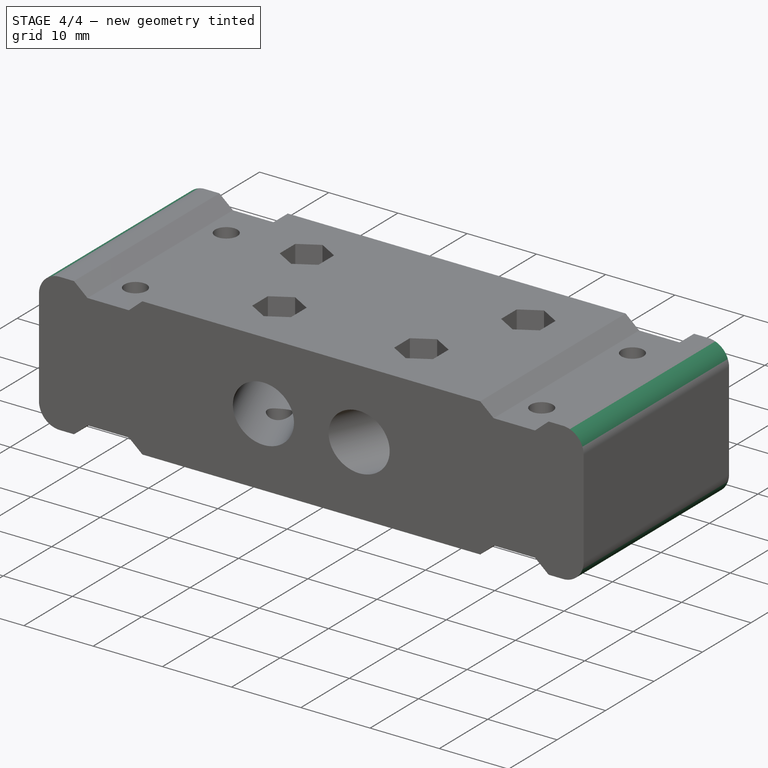
[diagram: stage 4 of 4 — iso view after this stage's code; geometry added in this stage tinted green]
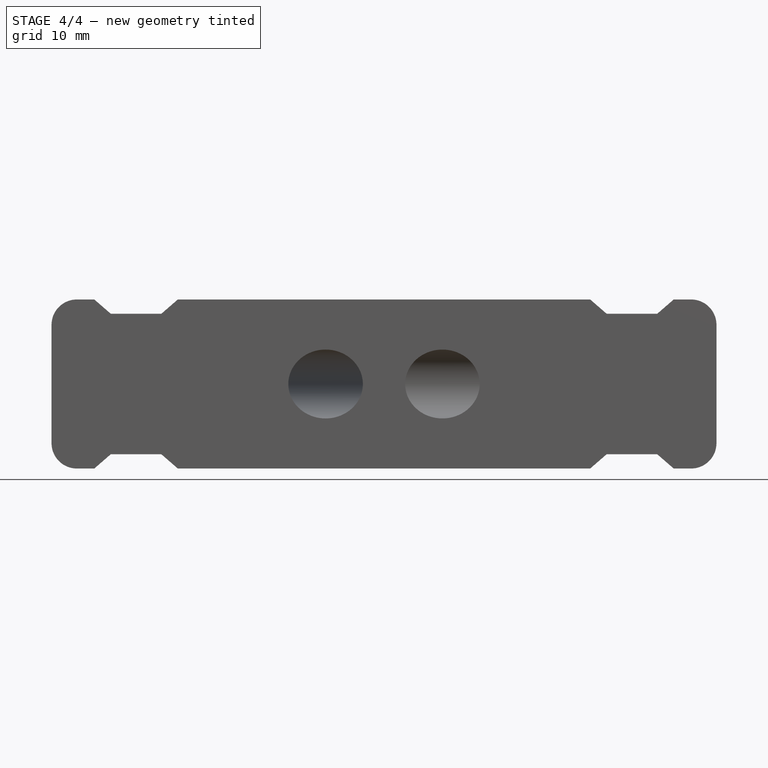
[diagram: stage 4 of 4 — front view after this stage's code; geometry added in this stage tinted green]
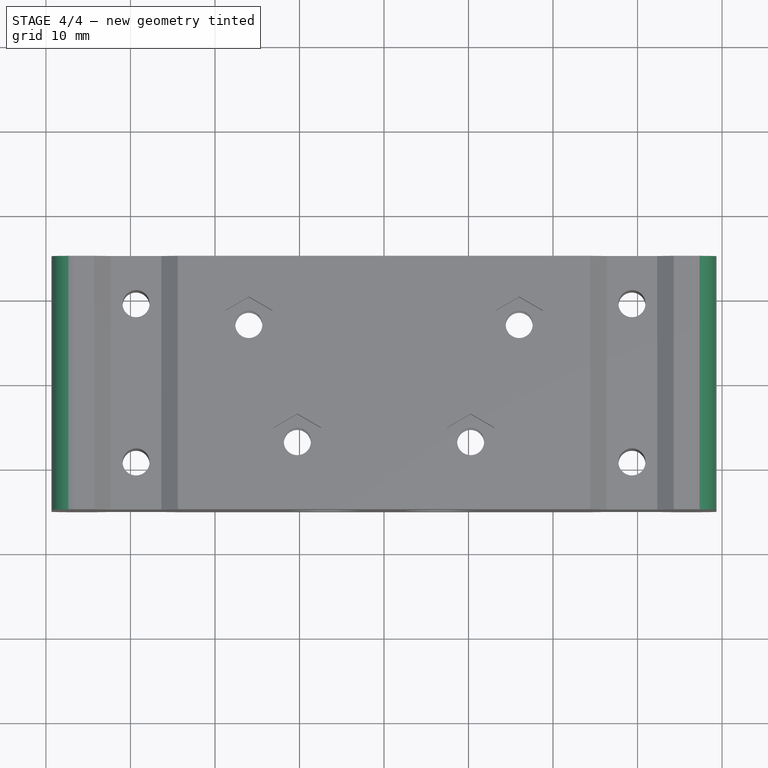
[diagram: stage 4 of 4 — top view after this stage's code; geometry added in this stage tinted green]
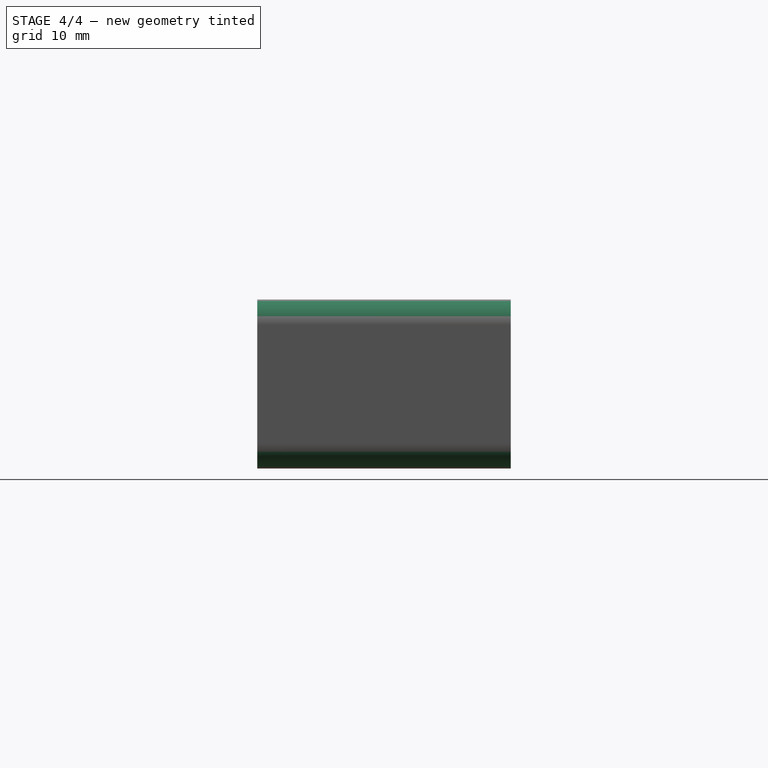
[diagram: stage 4 of 4 — right view after this stage's code; geometry added in this stage tinted green]
FEATURE [Sketcher::SketchObject] Sketch007
  ExternalGeometry = -> [Pocket005]
  FullyConstrained = true
  MapMode = 5
  Placement = pos=(0,-15,0) rot=(1,0,0;1.5708rad)
  Support = -> [Pocket005]
  sketch-geometry (23):
    g0: LineSegment StartX=-24.3972 StartY=20 StartZ=0 EndX=-26.3483 EndY=18.309 EndZ=0
    g1: LineSegment StartX=-26.3483 StartY=18.309 StartZ=0 EndX=-32.326 EndY=18.309 EndZ=0
    g2: LineSegment StartX=-32.326 StartY=18.309 StartZ=0 EndX=-34.2772 EndY=20 EndZ=0
    g3: LineSegment StartX=-34.0772 StartY=20 StartZ=0 EndX=-29.3372 EndY=20 EndZ=0
    g4: LineSegment StartX=-24.5972 StartY=20 StartZ=0 EndX=-29.3372 EndY=20 EndZ=0
    g5: LineSegment StartX=-34.2772 StartY=20 StartZ=0 EndX=-29.3372 EndY=20 EndZ=0
    g6: LineSegment StartX=-24.3972 StartY=20 StartZ=0 EndX=-29.3372 EndY=20 EndZ=0
    g7: LineSegment StartX=-34.0772 StartY=20 StartZ=0 EndX=-32.126 EndY=18.309 EndZ=0
    g8: LineSegment StartX=-24.3972 StartY=7.3e-15 StartZ=0 EndX=-34.2772 EndY=7.3e-15 EndZ=0
    g9: LineSegment StartX=-34.2772 StartY=7.3e-15 StartZ=0 EndX=-32.326 EndY=1.69099 EndZ=0
    g10: LineSegment StartX=-32.326 StartY=1.69099 StartZ=0 EndX=-26.3483 EndY=1.69099 EndZ=0
    g11: LineSegment StartX=-26.3483 StartY=1.69099 StartZ=0 EndX=-24.3972 EndY=7.3e-15 EndZ=0
    g12: LineSegment StartX=24.3972 StartY=1.37548e-07 StartZ=0 EndX=34.2772 EndY=1.37548e-07 EndZ=0
    g13: LineSegment StartX=34.2772 StartY=1.37548e-07 StartZ=0 EndX=32.326 EndY=1.69099 EndZ=0
    g14: LineSegment StartX=32.326 StartY=1.69099 StartZ=0 EndX=26.3483 EndY=1.69099 EndZ=0
    g15: LineSegment StartX=26.3483 StartY=1.69099 StartZ=0 EndX=24.3972 EndY=1.37548e-07 EndZ=0
    g16: LineSegment StartX=26.3483 StartY=18.309 StartZ=0 EndX=32.326 EndY=18.309 EndZ=0
    g17: LineSegment StartX=32.326 StartY=18.309 StartZ=0 EndX=34.2772 EndY=20 EndZ=0
    g18: LineSegment StartX=34.2772 StartY=20 StartZ=0 EndX=24.3972 EndY=20 EndZ=0
    g19: LineSegment StartX=24.3972 StartY=20 StartZ=0 EndX=26.3483 EndY=18.309 EndZ=0
    g20: LineSegment StartX=-24.5972 StartY=20 StartZ=0 EndX=-24.3972 EndY=20 EndZ=0
    g21: LineSegment StartX=24.3972 StartY=20 StartZ=0 EndX=24.5972 EndY=20 EndZ=0
    g22: LineSegment StartX=-32.2772 StartY=18.44 StartZ=0 EndX=-32.126 EndY=18.309 EndZ=0
  constraints (66):
    c: Coincident(g0,g1)
    c: Horizontal(g1)
    c: Coincident(g1,g2)
    c: Parallel(g2,g-3)
    c: Parallel(g-5,g0)
    c: Coincident(g3,g-3)
    c: Coincident(g4,g-5)
    c: Coincident(g4,g3)
    c: Equal(g4,g3)
    c: Horizontal(g3)
    c: Coincident(g5,g2)
    c: Coincident(g6,g0)
    c: Coincident(g6,g5)
    c: Equal(g5,g6)
    c: Horizontal(g5)
    c: Horizontal(g6)
    c: Vertical(g5,g3)
    c: PointOnObject(g-4,g7)
    c: PointOnObject(g3,g7)
    c: PointOnObject(g7,g5)
    c: PointOnObject(g7,g1)
    c: Distance(g7,g-4) = 0.2
    c: PointOnObject(g2,g3)
    c: Horizontal(g8)
    c: Coincident(g8,g9)
    c: Coincident(g9,g10)
    c: Horizontal(g10)
    c: Coincident(g10,g11)
    c: Coincident(g11,g8)
    c: Horizontal(g12)
    c: Coincident(g12,g13)
    c: Coincident(g13,g14)
    c: Horizontal(g14)
    c: Coincident(g14,g15)
    c: Coincident(g15,g12)
    c: Coincident(g16,g17)
    c: Coincident(g17,g18)
    c: Coincident(g18,g19)
    c: Coincident(g19,g16)
    c: PointOnObject(g-9,g12)
    c: PointOnObject(g-12,g18)
    c: Horizontal(g18)
    c: Horizontal(g16)
    c: PointOnObject(g-8,g8)
    c: Equal(g11,g9)
    c: Equal(g9,g15)
    c: Equal(g15,g13)
    c: Equal(g13,g17)
    c: Equal(g17,g19)
    c: Equal(g19,g0)
    c: Equal(g10,g1)
    c: Equal(g1,g16)
    c: Equal(g16,g14)
    c: Equal(g12,g8)
    c: Equal(g8,g18)
    c: Vertical(g8,g2)
    c: Vertical(g8,g0)
    c: Vertical(g12,g18)
    c: Coincident(g20,g4)
    c: Coincident(g21,g18)
    c: Equal(g21,g20)
    c: Coincident(g22,g-4)
    c: Equal(g22,g20)
    c: Coincident(g22,g7)
    c: Coincident(g20,g0)
    c: Coincident(g21,g-12)
FEATURE [PartDesign::Pocket] Pocket006
  BaseFeature = -> Pocket005
  Direction = (0,1,-2e-16)
  Length = 5
  Length2 = 5
  Profile = -> Sketch007
  ReferenceAxis = -> Sketch007 [N_Axis]
  Type = 1
FEATURE [PartDesign::Fillet] Fillet
  Base = -> Pocket006 [Edge56,Edge53,Edge237,Edge236]
  BaseFeature = -> Pocket006
  Radius = 3
  SupportTransform = false
  UseAllEdges = false
FEATURE [Sketcher::SketchObject] Sketch008
  ExternalGeometry = -> [Fillet]
  FullyConstrained = true
  MapMode = 5
  Placement = pos=(0,15,0) rot=(0,0.707107,0.707107;3.14159rad)
  Support = -> [Fillet]
  constraints (3):
    c: DistanceY(g-4,g-3) = 1.69099
    c: DistanceX(g-4,g-4) = 5.97772
    c: DistanceX(g-3,g-5) = 9.88
FEATURE [Sketcher::SketchObject] Sketch009
  ExternalGeometry = -> [Fillet]
  FullyConstrained = true
  MapMode = 5
  Placement = pos=(0,0,0) rot=(1,0,0;3.14159rad)
  Support = -> [Fillet]
  constraints (1):
    c: DistanceX(g-4,g-3) = 31.9882
FEATURE [PartDesign::Body] Body
  Group = -> [Sketch,Pad,Sketch001,Pocket,Sketch002,Pocket001,Sketch003,Pocket002,Sketch004,Pocket003,Sketch005,Pocket004,Sketch006,Pocket005,Sketch007,Pocket006,Fillet,Sketch008,Sketch009]
  Origin = -> Origin
  Tip = -> Fillet
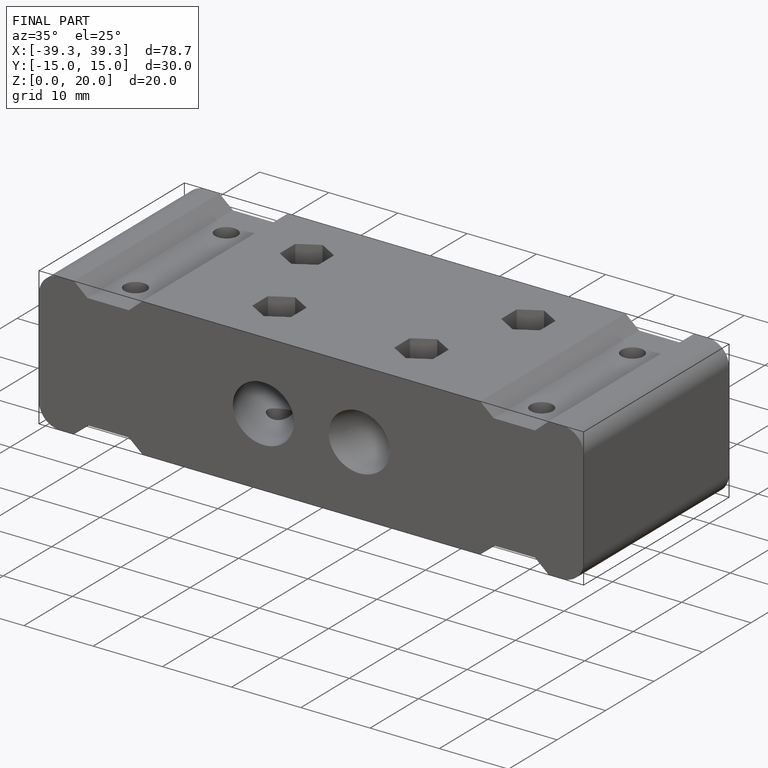
[diagram: finished part — iso view with bounding-box wireframe]
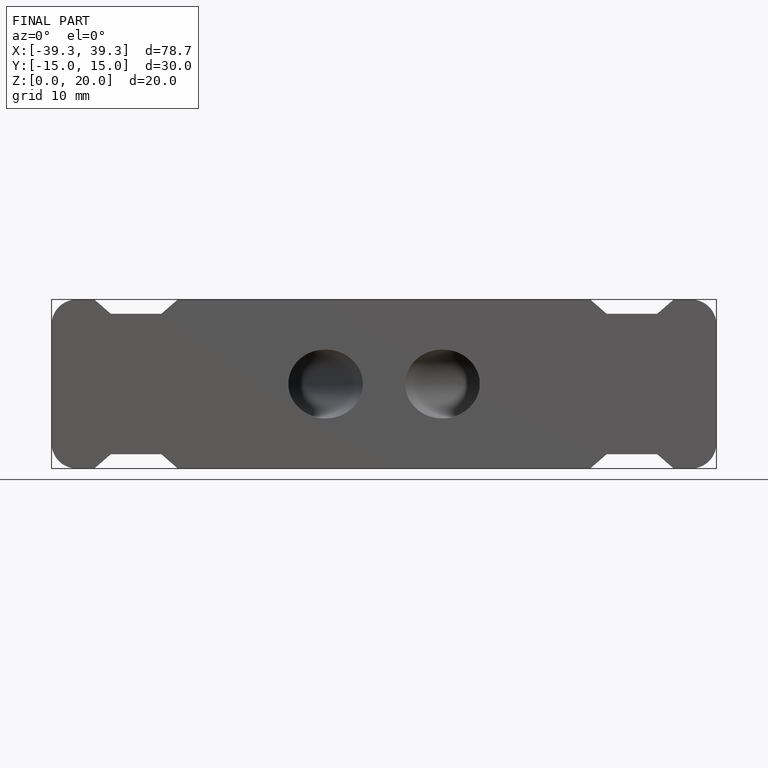
[diagram: finished part — front view with bounding-box wireframe]
